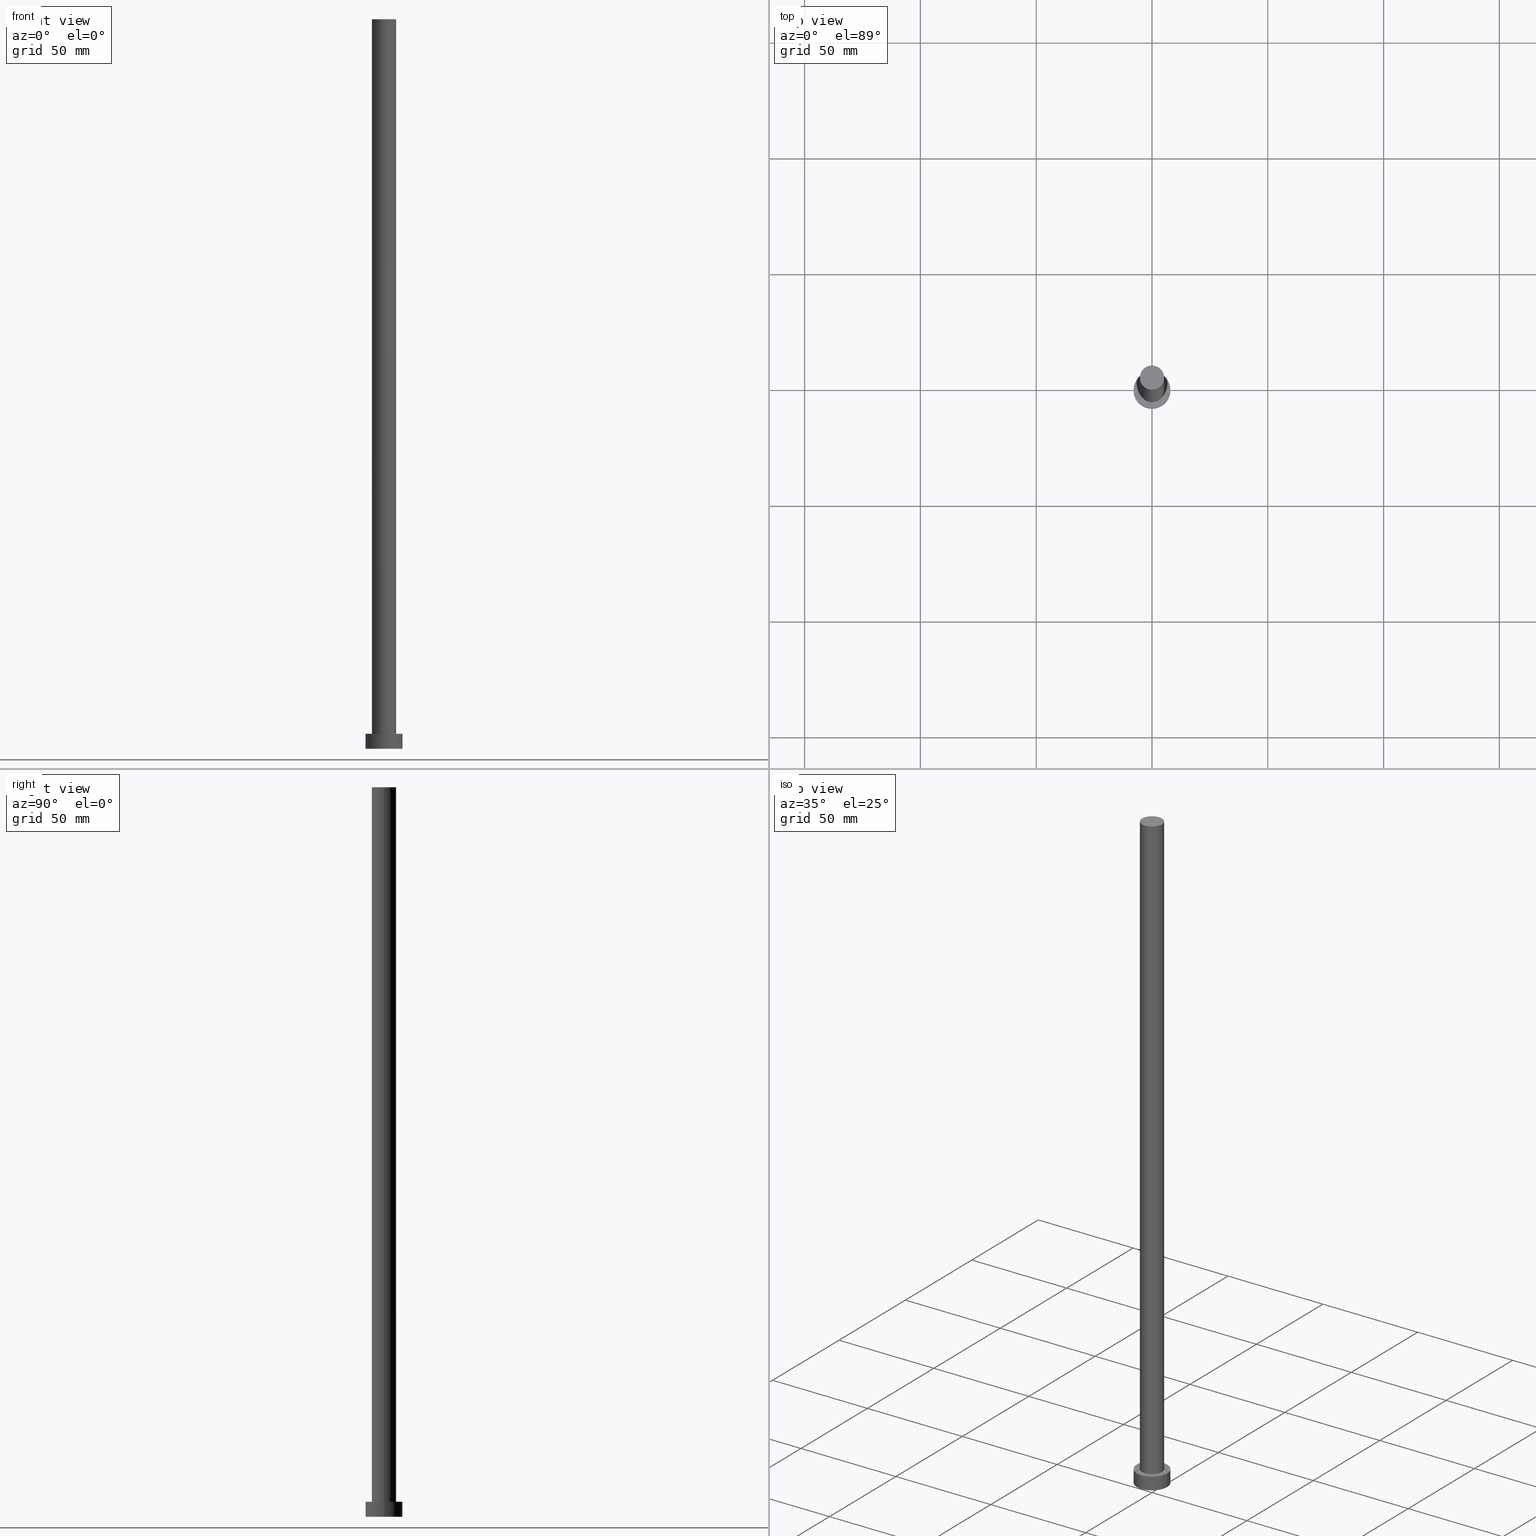
[diagram: canonical four-view strip — front | top / right | iso, engineering-drawing reading convention]
A machine part, canonical four-view strip (front | top / right | iso — engineering-drawing reading convention). The complete STEP part file that produces these views, byte-faithful:
ISO-10303-21;
HEADER;
FILE_DESCRIPTION (( 'STEP AP203' ),
    '1' );
FILE_NAME ('0050.STEP',
    '2023-02-13T12:21:55',
    ( '' ),
    ( '' ),
    'SwSTEP 2.0',
    'SolidWorks 2019',
    '' );
FILE_SCHEMA (( 'CONFIG_CONTROL_DESIGN' ));
ENDSEC;

DATA;
#1 = CC_DESIGN_PERSON_AND_ORGANIZATION_ASSIGNMENT ( #132, #230, ( #167 ) ) ;
#2 = PLANE ( 'NONE',  #176 ) ;
#3 = ORIENTED_EDGE ( 'NONE', *, *, #162, .F. ) ;
#4 = ORIENTED_EDGE ( 'NONE', *, *, #128, .F. ) ;
#5 = APPLICATION_PROTOCOL_DEFINITION ( 'international standard', 'config_control_design', 1994, #96 ) ;
#6 = AXIS2_PLACEMENT_3D ( 'NONE', #52, #133, #233 ) ;
#7 = ORIENTED_EDGE ( 'NONE', *, *, #162, .T. ) ;
#8 = ADVANCED_FACE ( 'NONE', ( #198 ), #120, .T. ) ;
#9 = MECHANICAL_CONTEXT ( 'NONE', #159, 'mechanical' ) ;
#10 = CARTESIAN_POINT ( 'NONE',  ( 0.000000000000000000, 0.000000000000000000, 6.500000000000000000 ) ) ;
#11 = DATE_AND_TIME ( #191, #234 ) ;
#12 = DIRECTION ( 'NONE',  ( -1.000000000000000000, 0.000000000000000000, 0.000000000000000000 ) ) ;
#13 = APPROVAL_STATUS ( 'not_yet_approved' ) ;
#14 = DIRECTION ( 'NONE',  ( 0.000000000000000000, 0.000000000000000000, 1.000000000000000000 ) ) ;
#15 = CARTESIAN_POINT ( 'NONE',  ( 5.250000000000000888, 6.429395695523604153E-16, 315.0000000000000000 ) ) ;
#16 = AXIS2_PLACEMENT_3D ( 'NONE', #199, #102, #219 ) ;
#17 = EDGE_CURVE ( 'NONE', #119, #19, #39, .T. ) ;
#18 = CARTESIAN_POINT ( 'NONE',  ( -5.250000000000000888, 0.000000000000000000, 6.500000000000000000 ) ) ;
#19 = VERTEX_POINT ( 'NONE', #221 ) ;
#20 =( GEOMETRIC_REPRESENTATION_CONTEXT ( 3 ) GLOBAL_UNCERTAINTY_ASSIGNED_CONTEXT ( ( #160 ) ) GLOBAL_UNIT_ASSIGNED_CONTEXT ( ( #123, #189, #246 ) ) REPRESENTATION_CONTEXT ( 'NONE', 'WORKASPACE' ) );
#21 = ORIENTED_EDGE ( 'NONE', *, *, #94, .T. ) ;
#22 = ORIENTED_EDGE ( 'NONE', *, *, #226, .T. ) ;
#23 = VECTOR ( 'NONE', #215, 1000.000000000000000 ) ;
#24 = COORDINATED_UNIVERSAL_TIME_OFFSET ( 1, 0, .AHEAD. ) ;
#25 = CARTESIAN_POINT ( 'NONE',  ( 8.000000000000000000, 9.797174393178823685E-16, 6.500000000000000000 ) ) ;
#26 = CC_DESIGN_DATE_AND_TIME_ASSIGNMENT ( #249, #48, ( #183 ) ) ;
#27 = VECTOR ( 'NONE', #50, 1000.000000000000000 ) ;
#28 = CYLINDRICAL_SURFACE ( 'NONE', #175, 8.000000000000000000 ) ;
#29 = AXIS2_PLACEMENT_3D ( 'NONE', #64, #37, #98 ) ;
#30 = DATE_AND_TIME ( #89, #80 ) ;
#31 = CALENDAR_DATE ( 2023, 13, 2 ) ;
#32 = LINE ( 'NONE', #90, #27 ) ;
#33 = CC_DESIGN_APPROVAL ( #45, ( #40 ) ) ;
#34 = DIRECTION ( 'NONE',  ( 1.000000000000000000, 0.000000000000000000, -0.000000000000000000 ) ) ;
#35 = DIRECTION ( 'NONE',  ( -0.000000000000000000, -0.000000000000000000, -1.000000000000000000 ) ) ;
#36 = EDGE_LOOP ( 'NONE', ( #7, #83 ) ) ;
#37 = DIRECTION ( 'NONE',  ( -0.000000000000000000, -0.000000000000000000, -1.000000000000000000 ) ) ;
#38 = VERTEX_POINT ( 'NONE', #25 ) ;
#39 = LINE ( 'NONE', #121, #170 ) ;
#40 = PRODUCT_DEFINITION ( 'NEZN�M�', '', #167, #54 ) ;
#41 = ORIENTED_EDGE ( 'NONE', *, *, #202, .T. ) ;
#42 = EDGE_LOOP ( 'NONE', ( #164, #41, #101, #86 ) ) ;
#43 = CIRCLE ( 'NONE', #135, 5.250000000000000888 ) ;
#44 = CARTESIAN_POINT ( 'NONE',  ( 0.000000000000000000, 0.000000000000000000, 6.500000000000000000 ) ) ;
#45 = APPROVAL ( #168, 'NEUR�EN�' ) ;
#46 = DIRECTION ( 'NONE',  ( 0.000000000000000000, 0.000000000000000000, 1.000000000000000000 ) ) ;
#47 = FACE_OUTER_BOUND ( 'NONE', #42, .T. ) ;
#48 = DATE_TIME_ROLE ( 'classification_date' ) ;
#49 = COORDINATED_UNIVERSAL_TIME_OFFSET ( 1, 0, .AHEAD. ) ;
#50 = DIRECTION ( 'NONE',  ( -0.000000000000000000, -0.000000000000000000, -1.000000000000000000 ) ) ;
#51 = PERSON_AND_ORGANIZATION_ROLE ( 'creator' ) ;
#52 = CARTESIAN_POINT ( 'NONE',  ( 0.000000000000000000, 0.000000000000000000, 6.500000000000000000 ) ) ;
#53 = DIRECTION ( 'NONE',  ( 0.000000000000000000, 0.000000000000000000, 1.000000000000000000 ) ) ;
#54 = DESIGN_CONTEXT ( 'detailed design', #96, 'design' ) ;
#55 = CARTESIAN_POINT ( 'NONE',  ( 0.000000000000000000, 0.000000000000000000, 0.000000000000000000 ) ) ;
#56 = EDGE_CURVE ( 'NONE', #217, #38, #108, .T. ) ;
#57 = AXIS2_PLACEMENT_3D ( 'NONE', #156, #53, #214 ) ;
#58 = DIRECTION ( 'NONE',  ( 0.000000000000000000, 0.000000000000000000, 1.000000000000000000 ) ) ;
#59 = EDGE_LOOP ( 'NONE', ( #223, #187 ) ) ;
#60 = EDGE_CURVE ( 'NONE', #38, #217, #104, .T. ) ;
#61 = VERTEX_POINT ( 'NONE', #188 ) ;
#62 = CARTESIAN_POINT ( 'NONE',  ( -8.000000000000000000, 0.000000000000000000, 6.500000000000000000 ) ) ;
#63 = LOCAL_TIME ( 13, 21, 55.00000000000000000, #49 ) ;
#64 = CARTESIAN_POINT ( 'NONE',  ( 0.000000000000000000, 0.000000000000000000, 315.0000000000000000 ) ) ;
#65 = ORIENTED_EDGE ( 'NONE', *, *, #116, .F. ) ;
#66 = ADVANCED_FACE ( 'NONE', ( #47 ), #28, .T. ) ;
#67 = CIRCLE ( 'NONE', #75, 5.250000000000000888 ) ;
#68 = DIRECTION ( 'NONE',  ( 1.000000000000000000, 0.000000000000000000, 0.000000000000000000 ) ) ;
#69 = CARTESIAN_POINT ( 'NONE',  ( 0.000000000000000000, 0.000000000000000000, 6.500000000000000000 ) ) ;
#70 = PERSON_AND_ORGANIZATION ( #218, #255 ) ;
#71 = DIRECTION ( 'NONE',  ( -0.000000000000000000, -0.000000000000000000, -1.000000000000000000 ) ) ;
#72 = AXIS2_PLACEMENT_3D ( 'NONE', #232, #193, #213 ) ;
#73 = CALENDAR_DATE ( 2023, 13, 2 ) ;
#74 = FACE_OUTER_BOUND ( 'NONE', #36, .T. ) ;
#75 = AXIS2_PLACEMENT_3D ( 'NONE', #235, #118, #78 ) ;
#76 = COORDINATED_UNIVERSAL_TIME_OFFSET ( 1, 0, .AHEAD. ) ;
#77 = DIRECTION ( 'NONE',  ( 1.000000000000000000, 0.000000000000000000, 0.000000000000000000 ) ) ;
#78 = DIRECTION ( 'NONE',  ( 1.000000000000000000, 0.000000000000000000, 0.000000000000000000 ) ) ;
#79 = ORIENTED_EDGE ( 'NONE', *, *, #128, .T. ) ;
#80 = LOCAL_TIME ( 13, 21, 55.00000000000000000, #24 ) ;
#81 = ORIENTED_EDGE ( 'NONE', *, *, #56, .T. ) ;
#82 = DIRECTION ( 'NONE',  ( 1.000000000000000000, 0.000000000000000000, -0.000000000000000000 ) ) ;
#83 = ORIENTED_EDGE ( 'NONE', *, *, #237, .T. ) ;
#84 = LINE ( 'NONE', #243, #244 ) ;
#85 = CIRCLE ( 'NONE', #228, 8.000000000000000000 ) ;
#86 = ORIENTED_EDGE ( 'NONE', *, *, #226, .F. ) ;
#87 = PERSON_AND_ORGANIZATION ( #218, #255 ) ;
#88 = APPROVAL_ROLE ( '' ) ;
#89 = CALENDAR_DATE ( 2023, 13, 2 ) ;
#90 = CARTESIAN_POINT ( 'NONE',  ( -5.250000000000000888, 0.000000000000000000, 315.0000000000000000 ) ) ;
#91 = DATE_AND_TIME ( #73, #63 ) ;
#92 = CARTESIAN_POINT ( 'NONE',  ( 0.000000000000000000, 0.000000000000000000, 315.0000000000000000 ) ) ;
#93 = FACE_OUTER_BOUND ( 'NONE', #105, .T. ) ;
#94 = EDGE_CURVE ( 'NONE', #239, #254, #253, .T. ) ;
#95 = FACE_BOUND ( 'NONE', #182, .T. ) ;
#96 = APPLICATION_CONTEXT ( 'configuration controlled 3d designs of mechanical parts and assemblies' ) ;
#97 = DIRECTION ( 'NONE',  ( -0.000000000000000000, -0.000000000000000000, -1.000000000000000000 ) ) ;
#98 = DIRECTION ( 'NONE',  ( -1.000000000000000000, 0.000000000000000000, 0.000000000000000000 ) ) ;
#99 = ORIENTED_EDGE ( 'NONE', *, *, #237, .F. ) ;
#100 = AXIS2_PLACEMENT_3D ( 'NONE', #92, #250, #34 ) ;
#101 = ORIENTED_EDGE ( 'NONE', *, *, #143, .T. ) ;
#102 = DIRECTION ( 'NONE',  ( -0.000000000000000000, -0.000000000000000000, -1.000000000000000000 ) ) ;
#103 = PERSON_AND_ORGANIZATION_ROLE ( 'design_owner' ) ;
#104 = CIRCLE ( 'NONE', #158, 8.000000000000000000 ) ;
#105 = EDGE_LOOP ( 'NONE', ( #241, #147, #22, #21 ) ) ;
#106 = DIRECTION ( 'NONE',  ( 0.000000000000000000, 0.000000000000000000, 1.000000000000000000 ) ) ;
#107 = PRODUCT ( '0050', '0050', '', ( #9 ) ) ;
#108 = CIRCLE ( 'NONE', #152, 8.000000000000000000 ) ;
#109 = CALENDAR_DATE ( 2023, 13, 2 ) ;
#110 = APPROVAL_DATE_TIME ( #205, #212 ) ;
#111 = APPROVAL_DATE_TIME ( #30, #45 ) ;
#112 = ADVANCED_FACE ( 'NONE', ( #93 ), #179, .T. ) ;
#113 = PERSON_AND_ORGANIZATION ( #218, #255 ) ;
#114 = DIRECTION ( 'NONE',  ( 0.000000000000000000, 0.000000000000000000, 1.000000000000000000 ) ) ;
#115 = APPROVAL_PERSON_ORGANIZATION ( #130, #212, #88 ) ;
#116 = EDGE_CURVE ( 'NONE', #61, #201, #32, .T. ) ;
#117 = FACE_OUTER_BOUND ( 'NONE', #59, .T. ) ;
#118 = DIRECTION ( 'NONE',  ( 0.000000000000000000, 0.000000000000000000, 1.000000000000000000 ) ) ;
#119 = VERTEX_POINT ( 'NONE', #15 ) ;
#120 = CYLINDRICAL_SURFACE ( 'NONE', #16, 5.250000000000000888 ) ;
#121 = CARTESIAN_POINT ( 'NONE',  ( 5.250000000000000888, 6.429395695523604153E-16, 315.0000000000000000 ) ) ;
#122 = LOCAL_TIME ( 13, 21, 55.00000000000000000, #173 ) ;
#123 =( LENGTH_UNIT ( ) NAMED_UNIT ( * ) SI_UNIT ( .MILLI., .METRE. ) );
#124 = ORIENTED_EDGE ( 'NONE', *, *, #184, .F. ) ;
#125 = ORIENTED_EDGE ( 'NONE', *, *, #116, .T. ) ;
#126 = CIRCLE ( 'NONE', #6, 5.250000000000000888 ) ;
#127 = DIRECTION ( 'NONE',  ( 1.000000000000000000, 0.000000000000000000, 0.000000000000000000 ) ) ;
#128 = EDGE_CURVE ( 'NONE', #19, #201, #242, .T. ) ;
#129 = CC_DESIGN_APPROVAL ( #212, ( #183 ) ) ;
#130 = PERSON_AND_ORGANIZATION ( #218, #255 ) ;
#131 = PERSON_AND_ORGANIZATION ( #218, #255 ) ;
#132 = PERSON_AND_ORGANIZATION ( #218, #255 ) ;
#133 = DIRECTION ( 'NONE',  ( 0.000000000000000000, 0.000000000000000000, 1.000000000000000000 ) ) ;
#134 = CLOSED_SHELL ( 'NONE', ( #240, #66, #112, #197, #148, #8, #178 ) ) ;
#135 = AXIS2_PLACEMENT_3D ( 'NONE', #157, #14, #136 ) ;
#136 = DIRECTION ( 'NONE',  ( 1.000000000000000000, 0.000000000000000000, 0.000000000000000000 ) ) ;
#137 = DIRECTION ( 'NONE',  ( -1.000000000000000000, 0.000000000000000000, 0.000000000000000000 ) ) ;
#138 = APPROVAL ( #13, 'NEUR�EN�' ) ;
#139 = LINE ( 'NONE', #166, #23 ) ;
#140 = ORIENTED_EDGE ( 'NONE', *, *, #17, .F. ) ;
#141 = FACE_OUTER_BOUND ( 'NONE', #163, .T. ) ;
#142 = ORIENTED_EDGE ( 'NONE', *, *, #60, .T. ) ;
#143 = EDGE_CURVE ( 'NONE', #254, #239, #85, .T. ) ;
#144 = EDGE_LOOP ( 'NONE', ( #140, #3, #125, #185 ) ) ;
#145 = AXIS2_PLACEMENT_3D ( 'NONE', #209, #161, #77 ) ;
#146 = CARTESIAN_POINT ( 'NONE',  ( -8.000000000000000000, 0.000000000000000000, 0.000000000000000000 ) ) ;
#147 = ORIENTED_EDGE ( 'NONE', *, *, #56, .F. ) ;
#148 = ADVANCED_FACE ( 'NONE', ( #117 ), #248, .F. ) ;
#149 = CC_DESIGN_SECURITY_CLASSIFICATION ( #183, ( #167 ) ) ;
#150 = PRODUCT_DEFINITION_SHAPE ( 'NONE', 'NONE',  #40 ) ;
#151 = PRODUCT_RELATED_PRODUCT_CATEGORY ( 'detail', '', ( #107 ) ) ;
#152 = AXIS2_PLACEMENT_3D ( 'NONE', #44, #169, #68 ) ;
#153 = PERSON_AND_ORGANIZATION ( #218, #255 ) ;
#154 = PLANE ( 'NONE',  #100 ) ;
#155 = SECURITY_CLASSIFICATION_LEVEL ( 'unclassified' ) ;
#156 = CARTESIAN_POINT ( 'NONE',  ( 0.000000000000000000, 0.000000000000000000, 6.500000000000000000 ) ) ;
#157 = CARTESIAN_POINT ( 'NONE',  ( 0.000000000000000000, 0.000000000000000000, 315.0000000000000000 ) ) ;
#158 = AXIS2_PLACEMENT_3D ( 'NONE', #69, #106, #245 ) ;
#159 = APPLICATION_CONTEXT ( 'configuration controlled 3d designs of mechanical parts and assemblies' ) ;
#160 = UNCERTAINTY_MEASURE_WITH_UNIT (LENGTH_MEASURE( 1.000000000000000082E-05 ), #123, 'distance_accuracy_value', 'NONE');
#161 = DIRECTION ( 'NONE',  ( 0.000000000000000000, 0.000000000000000000, 1.000000000000000000 ) ) ;
#162 = EDGE_CURVE ( 'NONE', #61, #119, #43, .T. ) ;
#163 = EDGE_LOOP ( 'NONE', ( #99, #203, #79, #65 ) ) ;
#164 = ORIENTED_EDGE ( 'NONE', *, *, #60, .F. ) ;
#165 = DIRECTION ( 'NONE',  ( -0.000000000000000000, -0.000000000000000000, -1.000000000000000000 ) ) ;
#166 = CARTESIAN_POINT ( 'NONE',  ( -8.000000000000000000, 0.000000000000000000, 6.500000000000000000 ) ) ;
#167 = PRODUCT_DEFINITION_FORMATION_WITH_SPECIFIED_SOURCE ( 'LIBOVOLN�', '', #107, .NOT_KNOWN. ) ;
#168 = APPROVAL_STATUS ( 'not_yet_approved' ) ;
#169 = DIRECTION ( 'NONE',  ( 0.000000000000000000, 0.000000000000000000, 1.000000000000000000 ) ) ;
#170 = VECTOR ( 'NONE', #165, 1000.000000000000000 ) ;
#171 = APPROVAL_PERSON_ORGANIZATION ( #131, #138, #174 ) ;
#172 = MANIFOLD_SOLID_BREP ( 'P�idat vysunut�m3', #134 ) ;
#173 = COORDINATED_UNIVERSAL_TIME_OFFSET ( 1, 0, .AHEAD. ) ;
#174 = APPROVAL_ROLE ( '' ) ;
#175 = AXIS2_PLACEMENT_3D ( 'NONE', #10, #71, #137 ) ;
#176 = AXIS2_PLACEMENT_3D ( 'NONE', #238, #58, #82 ) ;
#177 = COORDINATED_UNIVERSAL_TIME_OFFSET ( 1, 0, .AHEAD. ) ;
#178 = ADVANCED_FACE ( 'NONE', ( #74 ), #154, .T. ) ;
#179 = CYLINDRICAL_SURFACE ( 'NONE', #181, 8.000000000000000000 ) ;
#180 = ADVANCED_BREP_SHAPE_REPRESENTATION ( '0050', ( #172, #195 ), #20 ) ;
#181 = AXIS2_PLACEMENT_3D ( 'NONE', #196, #35, #12 ) ;
#182 = EDGE_LOOP ( 'NONE', ( #124, #4 ) ) ;
#183 = SECURITY_CLASSIFICATION ( '', '', #155 ) ;
#184 = EDGE_CURVE ( 'NONE', #201, #19, #126, .T. ) ;
#185 = ORIENTED_EDGE ( 'NONE', *, *, #184, .T. ) ;
#186 = CC_DESIGN_PERSON_AND_ORGANIZATION_ASSIGNMENT ( #113, #210, ( #183 ) ) ;
#187 = ORIENTED_EDGE ( 'NONE', *, *, #143, .F. ) ;
#188 = CARTESIAN_POINT ( 'NONE',  ( -5.250000000000000888, 0.000000000000000000, 315.0000000000000000 ) ) ;
#189 =( NAMED_UNIT ( * ) PLANE_ANGLE_UNIT ( ) SI_UNIT ( $, .RADIAN. ) );
#190 = APPLICATION_PROTOCOL_DEFINITION ( 'international standard', 'config_control_design', 1994, #159 ) ;
#191 = CALENDAR_DATE ( 2023, 13, 2 ) ;
#192 = APPROVAL_DATE_TIME ( #91, #138 ) ;
#193 = DIRECTION ( 'NONE',  ( 0.000000000000000000, 0.000000000000000000, 1.000000000000000000 ) ) ;
#194 = CC_DESIGN_PERSON_AND_ORGANIZATION_ASSIGNMENT ( #70, #103, ( #107 ) ) ;
#195 = AXIS2_PLACEMENT_3D ( 'NONE', #227, #46, #127 ) ;
#196 = CARTESIAN_POINT ( 'NONE',  ( 0.000000000000000000, 0.000000000000000000, 6.500000000000000000 ) ) ;
#197 = ADVANCED_FACE ( 'NONE', ( #95, #200 ), #2, .T. ) ;
#198 = FACE_OUTER_BOUND ( 'NONE', #144, .T. ) ;
#199 = CARTESIAN_POINT ( 'NONE',  ( 0.000000000000000000, 0.000000000000000000, 315.0000000000000000 ) ) ;
#200 = FACE_OUTER_BOUND ( 'NONE', #236, .T. ) ;
#201 = VERTEX_POINT ( 'NONE', #18 ) ;
#202 = EDGE_CURVE ( 'NONE', #38, #254, #84, .T. ) ;
#203 = ORIENTED_EDGE ( 'NONE', *, *, #17, .T. ) ;
#204 = APPROVAL_ROLE ( '' ) ;
#205 = DATE_AND_TIME ( #109, #122 ) ;
#206 = CC_DESIGN_APPROVAL ( #138, ( #167 ) ) ;
#207 = APPROVAL_STATUS ( 'not_yet_approved' ) ;
#208 = PERSON_AND_ORGANIZATION ( #218, #255 ) ;
#209 = CARTESIAN_POINT ( 'NONE',  ( 0.000000000000000000, 0.000000000000000000, 0.000000000000000000 ) ) ;
#210 = PERSON_AND_ORGANIZATION_ROLE ( 'classification_officer' ) ;
#211 = APPROVAL_PERSON_ORGANIZATION ( #87, #45, #204 ) ;
#212 = APPROVAL ( #207, 'NEUR�EN�' ) ;
#213 = DIRECTION ( 'NONE',  ( 1.000000000000000000, 0.000000000000000000, -0.000000000000000000 ) ) ;
#214 = DIRECTION ( 'NONE',  ( 1.000000000000000000, 0.000000000000000000, 0.000000000000000000 ) ) ;
#215 = DIRECTION ( 'NONE',  ( -0.000000000000000000, -0.000000000000000000, -1.000000000000000000 ) ) ;
#216 = CYLINDRICAL_SURFACE ( 'NONE', #29, 5.250000000000000888 ) ;
#217 = VERTEX_POINT ( 'NONE', #62 ) ;
#218 = PERSON ( 'NEUR�EN�', 'NEUR�EN�', 'NEUR�EN�', ('NEUR�EN�'), ('NEUR�EN�'), ('NEUR�EN�') ) ;
#219 = DIRECTION ( 'NONE',  ( -1.000000000000000000, 0.000000000000000000, 0.000000000000000000 ) ) ;
#220 = CARTESIAN_POINT ( 'NONE',  ( 8.000000000000000000, 9.797174393178823685E-16, 0.000000000000000000 ) ) ;
#221 = CARTESIAN_POINT ( 'NONE',  ( 5.250000000000000888, 6.429395695523604153E-16, 6.500000000000000000 ) ) ;
#222 = CC_DESIGN_DATE_AND_TIME_ASSIGNMENT ( #11, #231, ( #40 ) ) ;
#223 = ORIENTED_EDGE ( 'NONE', *, *, #94, .F. ) ;
#224 = SHAPE_DEFINITION_REPRESENTATION ( #150, #180 ) ;
#225 = LOCAL_TIME ( 13, 21, 55.00000000000000000, #177 ) ;
#226 = EDGE_CURVE ( 'NONE', #217, #239, #139, .T. ) ;
#227 = CARTESIAN_POINT ( 'NONE',  ( 0.000000000000000000, 0.000000000000000000, 0.000000000000000000 ) ) ;
#228 = AXIS2_PLACEMENT_3D ( 'NONE', #55, #114, #251 ) ;
#229 = CC_DESIGN_PERSON_AND_ORGANIZATION_ASSIGNMENT ( #208, #51, ( #167 ) ) ;
#230 = PERSON_AND_ORGANIZATION_ROLE ( 'design_supplier' ) ;
#231 = DATE_TIME_ROLE ( 'creation_date' ) ;
#232 = CARTESIAN_POINT ( 'NONE',  ( 0.000000000000000000, 0.000000000000000000, 0.000000000000000000 ) ) ;
#233 = DIRECTION ( 'NONE',  ( 1.000000000000000000, 0.000000000000000000, 0.000000000000000000 ) ) ;
#234 = LOCAL_TIME ( 13, 21, 55.00000000000000000, #76 ) ;
#235 = CARTESIAN_POINT ( 'NONE',  ( 0.000000000000000000, 0.000000000000000000, 315.0000000000000000 ) ) ;
#236 = EDGE_LOOP ( 'NONE', ( #81, #142 ) ) ;
#237 = EDGE_CURVE ( 'NONE', #119, #61, #67, .T. ) ;
#238 = CARTESIAN_POINT ( 'NONE',  ( 0.000000000000000000, 0.000000000000000000, 6.500000000000000000 ) ) ;
#239 = VERTEX_POINT ( 'NONE', #146 ) ;
#240 = ADVANCED_FACE ( 'NONE', ( #141 ), #216, .T. ) ;
#241 = ORIENTED_EDGE ( 'NONE', *, *, #202, .F. ) ;
#242 = CIRCLE ( 'NONE', #57, 5.250000000000000888 ) ;
#243 = CARTESIAN_POINT ( 'NONE',  ( 8.000000000000000000, 9.797174393178823685E-16, 6.500000000000000000 ) ) ;
#244 = VECTOR ( 'NONE', #97, 1000.000000000000000 ) ;
#245 = DIRECTION ( 'NONE',  ( 1.000000000000000000, 0.000000000000000000, 0.000000000000000000 ) ) ;
#246 =( NAMED_UNIT ( * ) SI_UNIT ( $, .STERADIAN. ) SOLID_ANGLE_UNIT ( ) );
#247 = PERSON_AND_ORGANIZATION_ROLE ( 'creator' ) ;
#248 = PLANE ( 'NONE',  #72 ) ;
#249 = DATE_AND_TIME ( #31, #225 ) ;
#250 = DIRECTION ( 'NONE',  ( 0.000000000000000000, 0.000000000000000000, 1.000000000000000000 ) ) ;
#251 = DIRECTION ( 'NONE',  ( 1.000000000000000000, 0.000000000000000000, 0.000000000000000000 ) ) ;
#252 = CC_DESIGN_PERSON_AND_ORGANIZATION_ASSIGNMENT ( #153, #247, ( #40 ) ) ;
#253 = CIRCLE ( 'NONE', #145, 8.000000000000000000 ) ;
#254 = VERTEX_POINT ( 'NONE', #220 ) ;
#255 = ORGANIZATION ( 'NEUR�EN�', 'NEUR�EN�', '' ) ;
ENDSEC;
END-ISO-10303-21;
